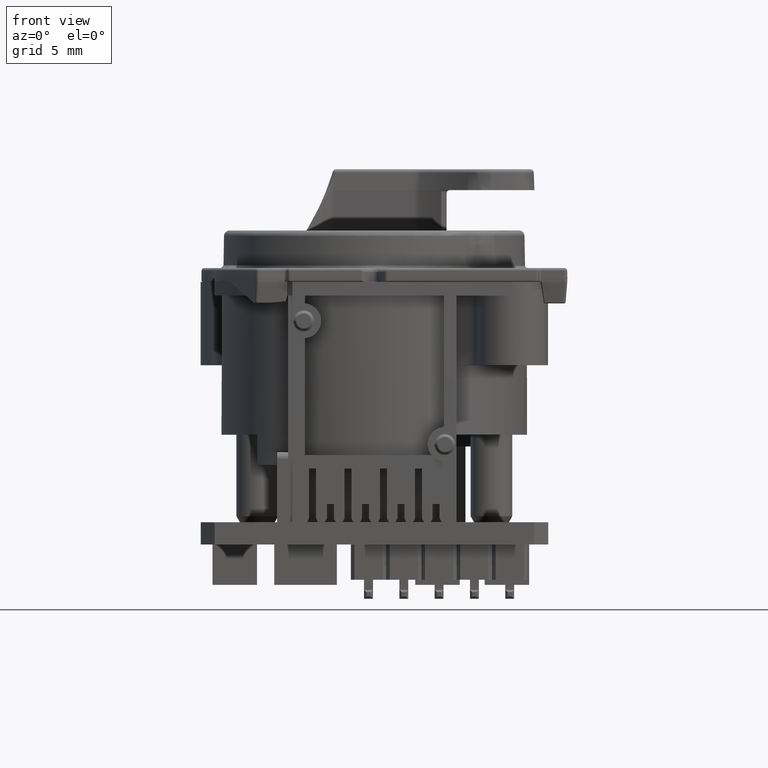
[diagram: clean part render]
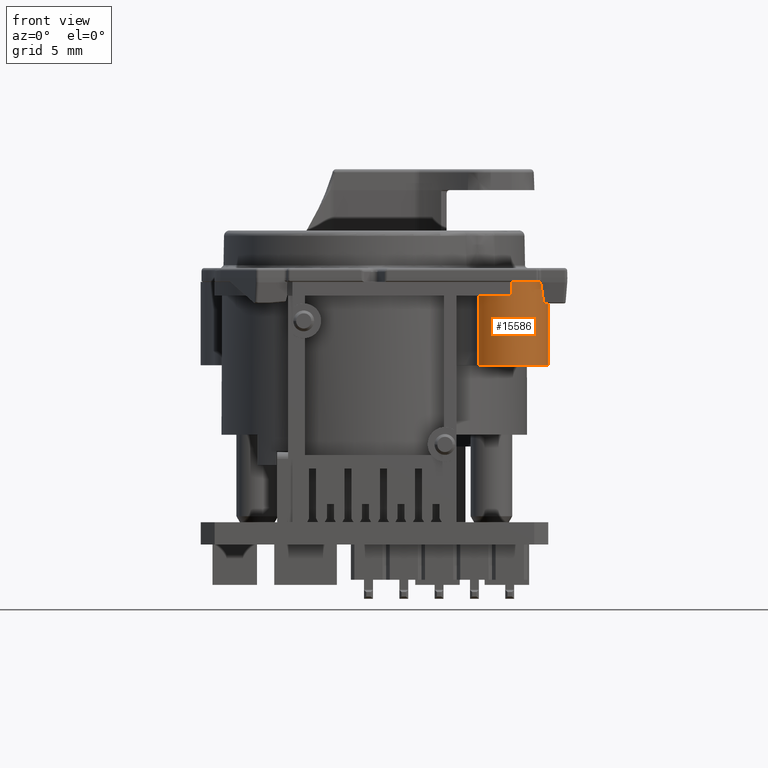
[diagram: same view with one face highlighted and labeled with its STEP entity id]
A machine part, front view. The second image highlights one B-rep face of the part: STEP entity #15586.
In plain terms, the highlighted cylindrical surface (edge-blend (fillet) strip) has radius 2.6 mm, axis along (0, 0, 1).
Its self-contained STEP definition (entity closure, byte-faithful):
#3354=CARTESIAN_POINT('',(9.9E0,-9.9E0,-3.7E0));
#3355=DIRECTION('',(0.E0,0.E0,1.E0));
#3356=DIRECTION('',(0.E0,-1.E0,0.E0));
#3357=AXIS2_PLACEMENT_3D('',#3354,#3355,#3356);
#3527=CARTESIAN_POINT('',(9.9E0,-9.9E0,-9.7E0));
#3528=DIRECTION('',(0.E0,0.E0,-1.E0));
#3529=DIRECTION('',(8.684210526321E-1,4.958274652995E-1,0.E0));
#3530=AXIS2_PLACEMENT_3D('',#3527,#3528,#3529);
#3910=CARTESIAN_POINT('',(9.9E0,-9.9E0,-4.7E0));
#3911=DIRECTION('',(0.E0,0.E0,-1.E0));
#3912=DIRECTION('',(-1.630207350786E-5,-9.999999998671E-1,0.E0));
#3913=AXIS2_PLACEMENT_3D('',#3910,#3911,#3912);
#5522=DIRECTION('',(1.412846370600E-5,0.E0,9.999999999002E-1));
#5523=VECTOR('',#5522,1.000000000100E0);
#5524=CARTESIAN_POINT('',(9.899985871536E0,-1.25E1,-4.7E0));
#5525=LINE('',#5524,#5523);
#5535=DIRECTION('',(2.173609617607E-6,-3.807131657004E-6,9.999999999904E-1));
#5536=VECTOR('',#5535,6.000000000058E0);
#5537=CARTESIAN_POINT('',(1.215788169518E1,-8.610825747430E0,-9.7E0));
#5538=LINE('',#5537,#5536);
#5950=DIRECTION('',(0.E0,0.E0,-1.E0));
#5951=VECTOR('',#5950,5.E0);
#5952=CARTESIAN_POINT('',(7.507289052499E0,-1.091733418232E1,-4.7E0));
#5953=LINE('',#5952,#5951);
#6434=CARTESIAN_POINT('',(9.9E0,-1.25E1,-3.7E0));
#6436=VERTEX_POINT('',#6434);
#6437=CARTESIAN_POINT('',(1.215789473684E1,-8.610848590221E0,-3.7E0));
#6438=VERTEX_POINT('',#6437);
#6451=CARTESIAN_POINT('',(1.215789473684E1,-8.610848590221E0,-9.7E0));
#6452=CARTESIAN_POINT('',(7.507284087421E0,-1.091730553999E1,-9.7E0));
#6453=VERTEX_POINT('',#6451);
#6454=VERTEX_POINT('',#6452);
#6469=CARTESIAN_POINT('',(9.899957614609E0,-1.249999999965E1,-4.7E0));
#6470=CARTESIAN_POINT('',(7.507284087421E0,-1.091730553999E1,-4.7E0));
#6471=VERTEX_POINT('',#6469);
#6472=VERTEX_POINT('',#6470);
#15571=CARTESIAN_POINT('',(9.9E0,-9.9E0,-4.7E0));
#15572=DIRECTION('',(0.E0,0.E0,1.E0));
#15573=DIRECTION('',(1.E0,0.E0,0.E0));
#15574=AXIS2_PLACEMENT_3D('',#15571,#15572,#15573);
#15575=CYLINDRICAL_SURFACE('',#15574,2.6E0);
#15577=ORIENTED_EDGE('',*,*,#15576,.F.);
#15578=ORIENTED_EDGE('',*,*,#12788,.T.);
#15580=ORIENTED_EDGE('',*,*,#15579,.F.);
#15581=ORIENTED_EDGE('',*,*,#13322,.F.);
#15582=ORIENTED_EDGE('',*,*,#15566,.T.);
#15583=ORIENTED_EDGE('',*,*,#12566,.T.);
#15584=EDGE_LOOP('',(#15577,#15578,#15580,#15581,#15582,#15583));
#15585=FACE_OUTER_BOUND('',#15584,.F.);
#15586=ADVANCED_FACE('',(#15585),#15575,.T.);
#3358=CIRCLE('',#3357,2.6E0);
#3531=CIRCLE('',#3530,2.6E0);
#3914=CIRCLE('',#3913,2.6E0);
#12566=EDGE_CURVE('',#6436,#6438,#3358,.T.);
#12788=EDGE_CURVE('',#6453,#6454,#3531,.T.);
#13322=EDGE_CURVE('',#6471,#6472,#3914,.T.);
#15566=EDGE_CURVE('',#6471,#6436,#5525,.T.);
#15576=EDGE_CURVE('',#6453,#6438,#5538,.T.);
#15579=EDGE_CURVE('',#6472,#6454,#5953,.T.);